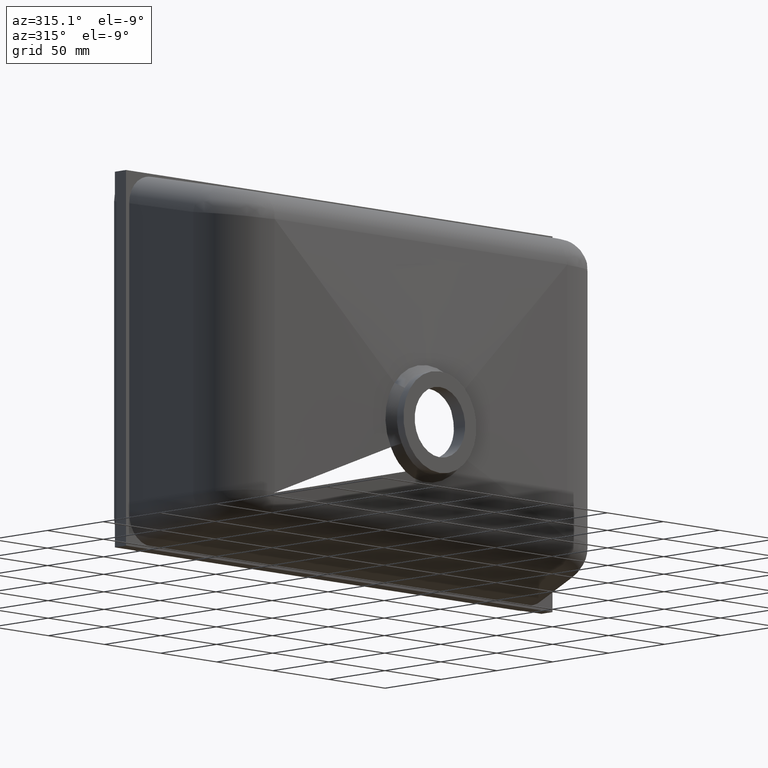
[diagram: clean part render]
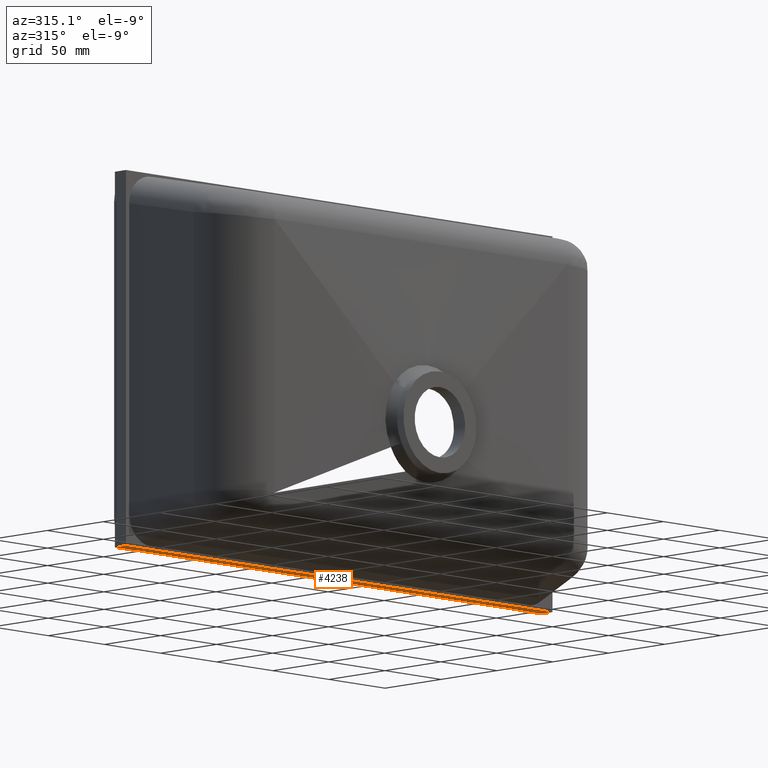
[diagram: same view with one face highlighted and labeled with its STEP entity id]
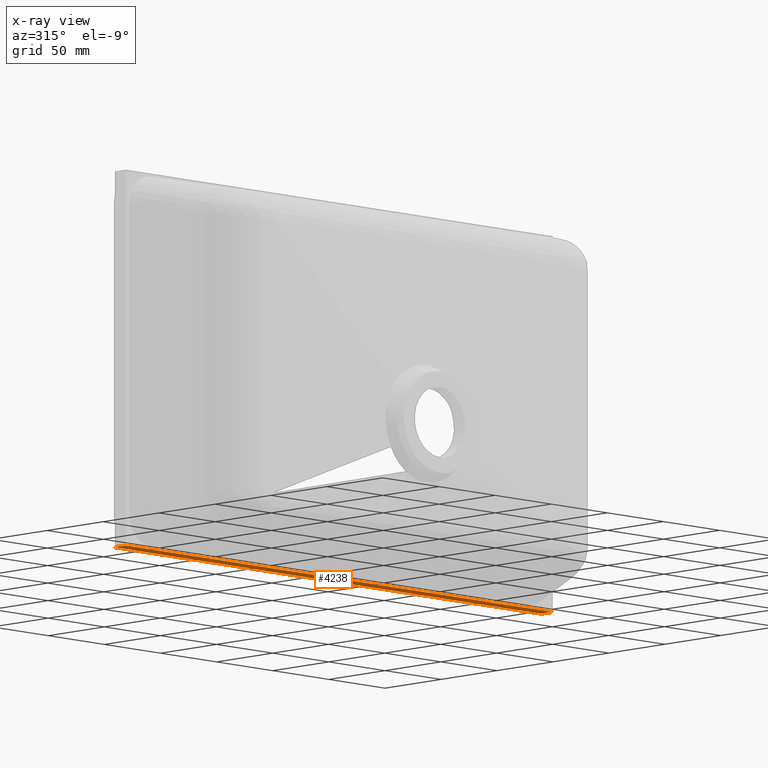
[diagram: x-ray of the same camera — body ghosted, the highlighted face saturated]
A machine part, auxiliary view. The second image highlights one B-rep face of the part: STEP entity #4238.
The next image is the same camera in x-ray: the body ghosted, the highlighted face saturated — about 0% of this face is hidden behind the body in this view.
In plain terms, the highlighted planar face has unit normal (0, 0, -1).
Its self-contained STEP definition (entity closure, byte-faithful):
#298 = EDGE_CURVE ( 'NONE', #2826, #4752, #5031, .T. ) ;
#704 = EDGE_LOOP ( 'NONE', ( #2513, #5268, #1383, #920 ) ) ;
#920 = ORIENTED_EDGE ( 'NONE', *, *, #6275, .T. ) ;
#1173 = CARTESIAN_POINT ( 'NONE',  ( 189.9999999999999700, 0.0000000000000000000, -119.9999999999999700 ) ) ;
#1383 = ORIENTED_EDGE ( 'NONE', *, *, #298, .T. ) ;
#1684 = DIRECTION ( 'NONE',  ( 0.0000000000000000000, 1.000000000000000000, 0.0000000000000000000 ) ) ;
#1838 = CARTESIAN_POINT ( 'NONE',  ( -189.9999999999999400, -10.00000000000000000, -119.9999999999999700 ) ) ;
#1941 = AXIS2_PLACEMENT_3D ( 'NONE', #3061, #2874, #2831 ) ;
#2166 = CARTESIAN_POINT ( 'NONE',  ( 189.9999999999999700, -10.00000000000000000, -119.9999999999999700 ) ) ;
#2182 = DIRECTION ( 'NONE',  ( 0.0000000000000000000, 1.000000000000000000, 0.0000000000000000000 ) ) ;
#2513 = ORIENTED_EDGE ( 'NONE', *, *, #3585, .F. ) ;
#2526 = VERTEX_POINT ( 'NONE', #1173 ) ;
#2757 = CARTESIAN_POINT ( 'NONE',  ( -189.9999999999999400, -10.00000000000000000, -119.9999999999999700 ) ) ;
#2826 = VERTEX_POINT ( 'NONE', #7370 ) ;
#2831 = DIRECTION ( 'NONE',  ( -1.000000000000000000, 0.0000000000000000000, -0.0000000000000000000 ) ) ;
#2874 = DIRECTION ( 'NONE',  ( 0.0000000000000000000, 0.0000000000000000000, -1.000000000000000000 ) ) ;
#2922 = CARTESIAN_POINT ( 'NONE',  ( -189.9999999999999400, 0.0000000000000000000, -119.9999999999999700 ) ) ;
#3061 = CARTESIAN_POINT ( 'NONE',  ( -189.9999999999999400, -10.00000000000000000, -119.9999999999999700 ) ) ;
#3085 = PLANE ( 'NONE',  #1941 ) ;
#3178 = VERTEX_POINT ( 'NONE', #2922 ) ;
#3585 = EDGE_CURVE ( 'NONE', #2526, #3178, #4505, .T. ) ;
#3632 = DIRECTION ( 'NONE',  ( -1.000000000000000000, -0.0000000000000000000, -0.0000000000000000000 ) ) ;
#3676 = CARTESIAN_POINT ( 'NONE',  ( -189.9999999999999400, 0.0000000000000000000, -119.9999999999999700 ) ) ;
#4238 = ADVANCED_FACE ( 'NONE', ( #7171 ), #3085, .T. ) ;
#4505 = LINE ( 'NONE', #3676, #7373 ) ;
#4522 = VECTOR ( 'NONE', #2182, 1000.000000000000000 ) ;
#4752 = VERTEX_POINT ( 'NONE', #7177 ) ;
#5031 = LINE ( 'NONE', #2757, #7261 ) ;
#5242 = LINE ( 'NONE', #1838, #6384 ) ;
#5268 = ORIENTED_EDGE ( 'NONE', *, *, #5441, .F. ) ;
#5441 = EDGE_CURVE ( 'NONE', #2826, #2526, #7198, .T. ) ;
#5945 = DIRECTION ( 'NONE',  ( -1.000000000000000000, -0.0000000000000000000, -0.0000000000000000000 ) ) ;
#6275 = EDGE_CURVE ( 'NONE', #4752, #3178, #5242, .T. ) ;
#6384 = VECTOR ( 'NONE', #1684, 1000.000000000000000 ) ;
#7171 = FACE_OUTER_BOUND ( 'NONE', #704, .T. ) ;
#7177 = CARTESIAN_POINT ( 'NONE',  ( -189.9999999999999400, -10.00000000000000000, -119.9999999999999700 ) ) ;
#7198 = LINE ( 'NONE', #2166, #4522 ) ;
#7261 = VECTOR ( 'NONE', #5945, 1000.000000000000000 ) ;
#7370 = CARTESIAN_POINT ( 'NONE',  ( 189.9999999999999700, -10.00000000000000000, -119.9999999999999700 ) ) ;
#7373 = VECTOR ( 'NONE', #3632, 1000.000000000000000 ) ;